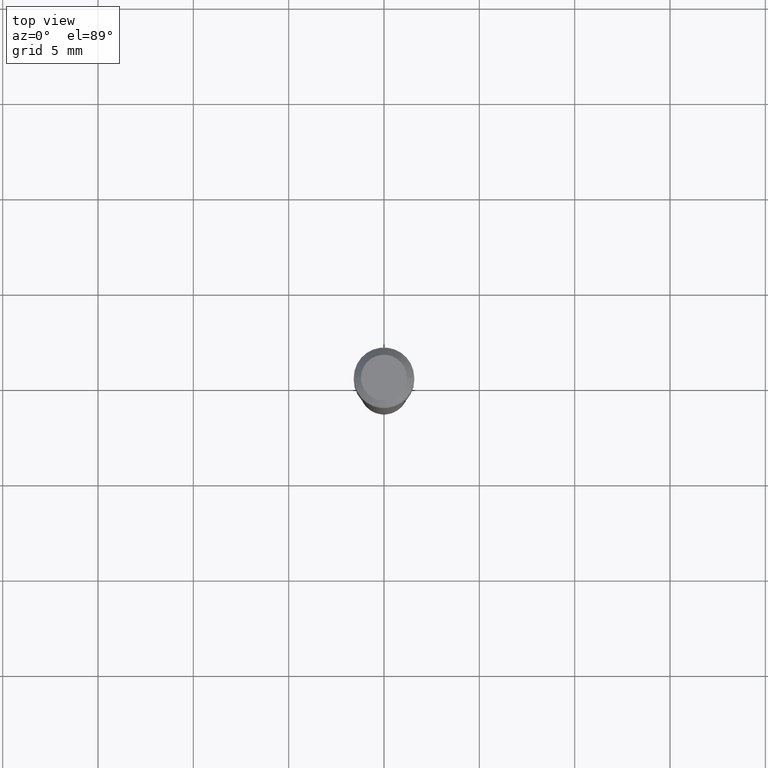
[diagram: clean part render]
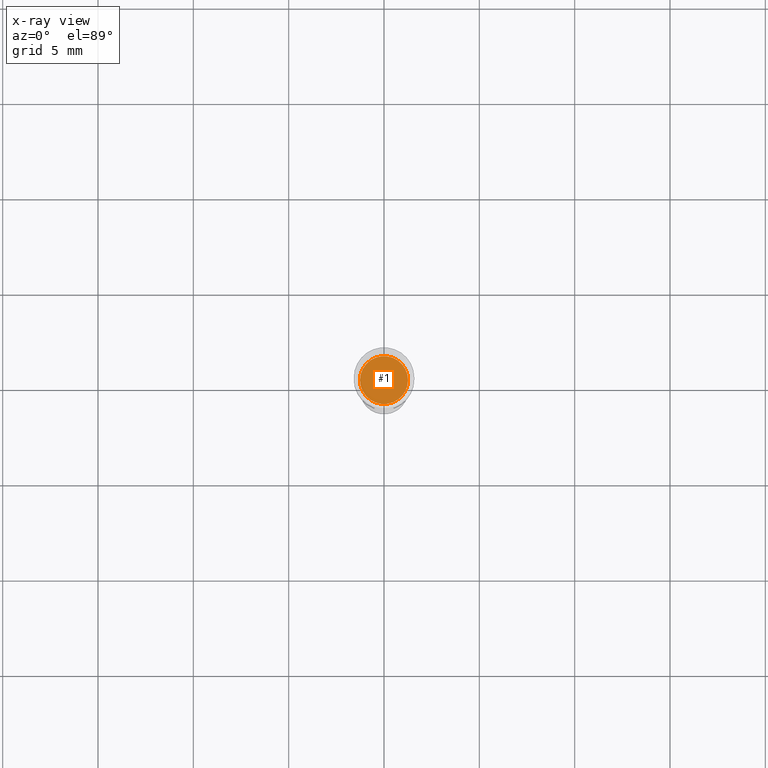
[diagram: x-ray — body ghosted, one internal face saturated and labeled with its STEP entity id]
A machine part, top view, then the same camera in x-ray: the body is ghosted and one INTERNAL B-rep face — a face not visible from any outside direction — is saturated and labeled: STEP entity #1.
In plain terms, the highlighted planar face has unit normal (-0, 0, 1).
Its self-contained STEP definition (entity closure, byte-faithful):
#1 = ADVANCED_FACE ( 'NONE', ( #269 ), #233, .F. ) ;
#35 = DIRECTION ( 'NONE',  ( 1.000000000000000000, -6.982962677686265922E-15, 4.876176775795935793E-29 ) ) ;
#52 = DIRECTION ( 'NONE',  ( -2.445468806185136597E-29, 3.491481338843145583E-15, 1.000000000000000000 ) ) ;
#93 = DIRECTION ( 'NONE',  ( 1.000000000000000000, -6.982962677686265922E-15, 0.000000000000000000 ) ) ;
#136 = EDGE_CURVE ( 'NONE', #227, #193, #326, .T. ) ;
#149 = EDGE_CURVE ( 'NONE', #193, #227, #381, .T. ) ;
#176 = DIRECTION ( 'NONE',  ( -2.445468806185136597E-29, 3.491481338843145583E-15, 1.000000000000000000 ) ) ;
#193 = VERTEX_POINT ( 'NONE', #204 ) ;
#194 = EDGE_LOOP ( 'NONE', ( #407, #290 ) ) ;
#203 = DIRECTION ( 'NONE',  ( 1.000000000000000000, -6.982962677686265922E-15, 0.000000000000000000 ) ) ;
#204 = CARTESIAN_POINT ( 'NONE',  ( 0.04950000000000000233, -1.393101054198414674E-15, -0.3000000000000002109 ) ) ;
#206 = CARTESIAN_POINT ( 'NONE',  ( 7.336406418555414555E-30, -1.047444401652944543E-15, -0.3000000000000002109 ) ) ;
#207 = CARTESIAN_POINT ( 'NONE',  ( -0.04950000000000000233, -6.930765202775837329E-16, -0.3000000000000002109 ) ) ;
#227 = VERTEX_POINT ( 'NONE', #207 ) ;
#230 = AXIS2_PLACEMENT_3D ( 'NONE', #357, #52, #203 ) ;
#233 = PLANE ( 'NONE',  #361 ) ;
#269 = FACE_OUTER_BOUND ( 'NONE', #194, .T. ) ;
#290 = ORIENTED_EDGE ( 'NONE', *, *, #136, .F. ) ;
#297 = AXIS2_PLACEMENT_3D ( 'NONE', #206, #176, #93 ) ;
#307 = DIRECTION ( 'NONE',  ( -2.438088387897960049E-29, 3.491481338843145188E-15, 1.000000000000000000 ) ) ;
#326 = CIRCLE ( 'NONE', #230, 0.04950000000000000233 ) ;
#357 = CARTESIAN_POINT ( 'NONE',  ( 7.336406418555414555E-30, -1.047444401652944543E-15, -0.3000000000000002109 ) ) ;
#361 = AXIS2_PLACEMENT_3D ( 'NONE', #364, #307, #35 ) ;
#364 = CARTESIAN_POINT ( 'NONE',  ( 7.336406418555414555E-30, -1.047444401652944543E-15, -0.3000000000000002109 ) ) ;
#381 = CIRCLE ( 'NONE', #297, 0.04950000000000000233 ) ;
#407 = ORIENTED_EDGE ( 'NONE', *, *, #149, .F. ) ;